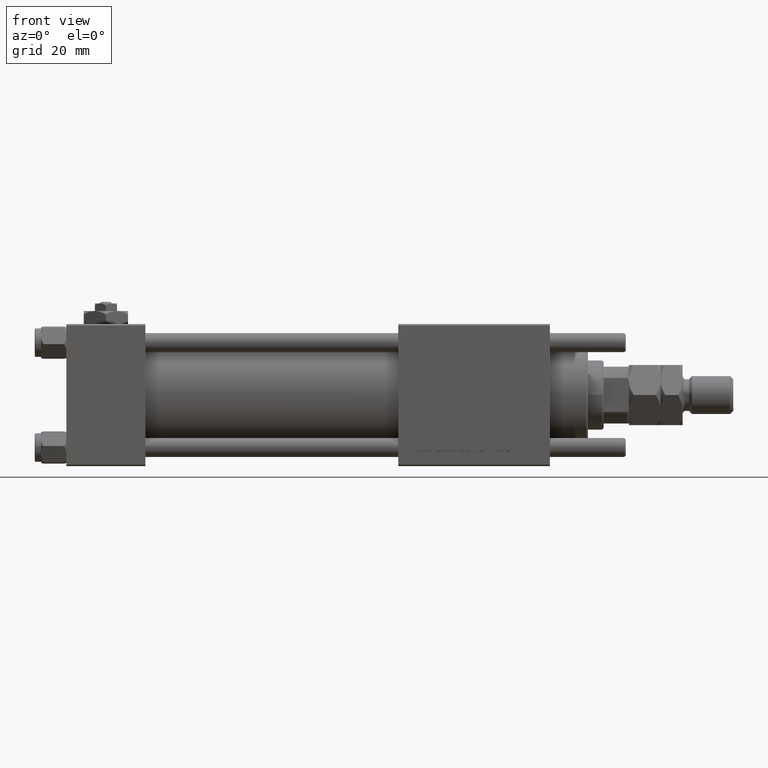
[diagram: clean part render]
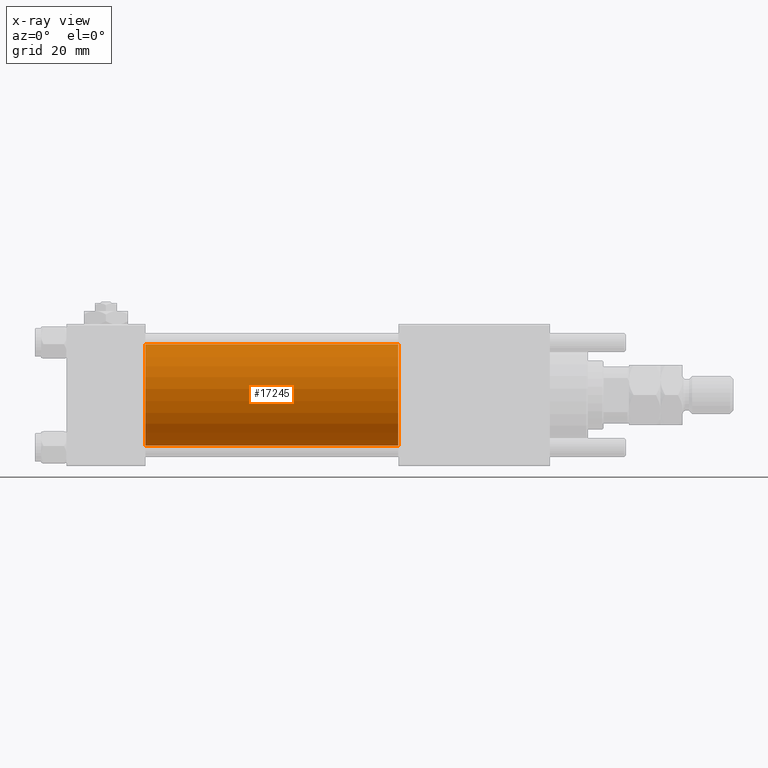
[diagram: x-ray — body ghosted, one internal face saturated and labeled with its STEP entity id]
A machine part, front view, then the same camera in x-ray: the body is ghosted and one INTERNAL B-rep face — a face not visible from any outside direction — is saturated and labeled: STEP entity #17245.
In plain terms, the highlighted cylindrical surface (partial cylindrical patch) has radius 16 mm, axis along (-1, -0, -0).
Its self-contained STEP definition (entity closure, byte-faithful):
#1755 = DIRECTION ( 'NONE',  ( 1.000000000000000000, 0.000000000000000000, 0.000000000000000000 ) ) ;
#4354 = FACE_OUTER_BOUND ( 'NONE', #30392, .T. ) ;
#6213 = VECTOR ( 'NONE', #52267, 1000.000000000000000 ) ;
#6370 = LINE ( 'NONE', #24913, #6213 ) ;
#7680 = VERTEX_POINT ( 'NONE', #17680 ) ;
#8396 = CARTESIAN_POINT ( 'NONE',  ( 105.0000000000000142, -6.426503353294456087E-16, -16.00000000000000000 ) ) ;
#9533 = ORIENTED_EDGE ( 'NONE', *, *, #51662, .F. ) ;
#13163 = CARTESIAN_POINT ( 'NONE',  ( 105.0000000000000142, -2.602085213965210642E-15, 16.00000000000000000 ) ) ;
#13472 = DIRECTION ( 'NONE',  ( 0.000000000000000000, 0.000000000000000000, 1.000000000000000000 ) ) ;
#17245 = ADVANCED_FACE ( 'NONE', ( #4354 ), #28059, .F. ) ;
#17680 = CARTESIAN_POINT ( 'NONE',  ( 25.00000000000000000, -6.426503353294456087E-16, -16.00000000000000000 ) ) ;
#21287 = VERTEX_POINT ( 'NONE', #8396 ) ;
#23795 = VERTEX_POINT ( 'NONE', #34109 ) ;
#24913 = CARTESIAN_POINT ( 'NONE',  ( 105.0000000000000142, -6.426503353294456087E-16, -16.00000000000000000 ) ) ;
#25156 = DIRECTION ( 'NONE',  ( 0.000000000000000000, 0.000000000000000000, -1.000000000000000000 ) ) ;
#26232 = AXIS2_PLACEMENT_3D ( 'NONE', #41709, #37154, #13472 ) ;
#28059 = CYLINDRICAL_SURFACE ( 'NONE', #26232, 16.00000000000000000 ) ;
#30392 = EDGE_LOOP ( 'NONE', ( #30684, #49812, #44886, #9533 ) ) ;
#30684 = ORIENTED_EDGE ( 'NONE', *, *, #34212, .T. ) ;
#33717 = DIRECTION ( 'NONE',  ( -1.000000000000000000, -0.000000000000000000, -0.000000000000000000 ) ) ;
#34109 = CARTESIAN_POINT ( 'NONE',  ( 105.0000000000000142, -2.602085213965210642E-15, 16.00000000000000000 ) ) ;
#34212 = EDGE_CURVE ( 'NONE', #23795, #21287, #59373, .T. ) ;
#37154 = DIRECTION ( 'NONE',  ( -1.000000000000000000, -0.000000000000000000, -0.000000000000000000 ) ) ;
#38426 = VECTOR ( 'NONE', #33717, 1000.000000000000000 ) ;
#41153 = CARTESIAN_POINT ( 'NONE',  ( 25.00000000000000000, -2.602085213965210642E-15, 16.00000000000000000 ) ) ;
#41709 = CARTESIAN_POINT ( 'NONE',  ( 105.0000000000000142, -2.602085213965210642E-15, 0.000000000000000000 ) ) ;
#42867 = AXIS2_PLACEMENT_3D ( 'NONE', #47951, #1755, #25156 ) ;
#44288 = EDGE_CURVE ( 'NONE', #21287, #7680, #6370, .T. ) ;
#44886 = ORIENTED_EDGE ( 'NONE', *, *, #53349, .F. ) ;
#45290 = AXIS2_PLACEMENT_3D ( 'NONE', #57468, #58074, #49249 ) ;
#45660 = LINE ( 'NONE', #13163, #38426 ) ;
#47951 = CARTESIAN_POINT ( 'NONE',  ( 105.0000000000000142, -2.602085213965210642E-15, 0.000000000000000000 ) ) ;
#48204 = CIRCLE ( 'NONE', #45290, 16.00000000000000000 ) ;
#49249 = DIRECTION ( 'NONE',  ( 0.000000000000000000, 0.000000000000000000, -1.000000000000000000 ) ) ;
#49812 = ORIENTED_EDGE ( 'NONE', *, *, #44288, .T. ) ;
#51662 = EDGE_CURVE ( 'NONE', #23795, #55055, #45660, .T. ) ;
#52267 = DIRECTION ( 'NONE',  ( -1.000000000000000000, -0.000000000000000000, -0.000000000000000000 ) ) ;
#53349 = EDGE_CURVE ( 'NONE', #55055, #7680, #48204, .T. ) ;
#55055 = VERTEX_POINT ( 'NONE', #41153 ) ;
#57468 = CARTESIAN_POINT ( 'NONE',  ( 25.00000000000000000, -2.602085213965210642E-15, 0.000000000000000000 ) ) ;
#58074 = DIRECTION ( 'NONE',  ( 1.000000000000000000, 0.000000000000000000, 0.000000000000000000 ) ) ;
#59373 = CIRCLE ( 'NONE', #42867, 16.00000000000000000 ) ;